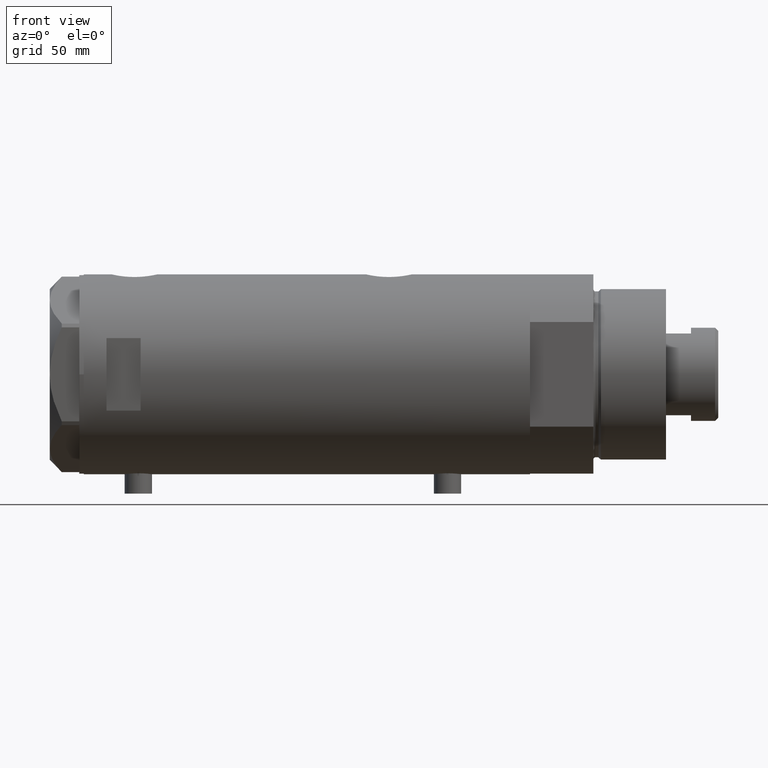
[diagram: clean part render]
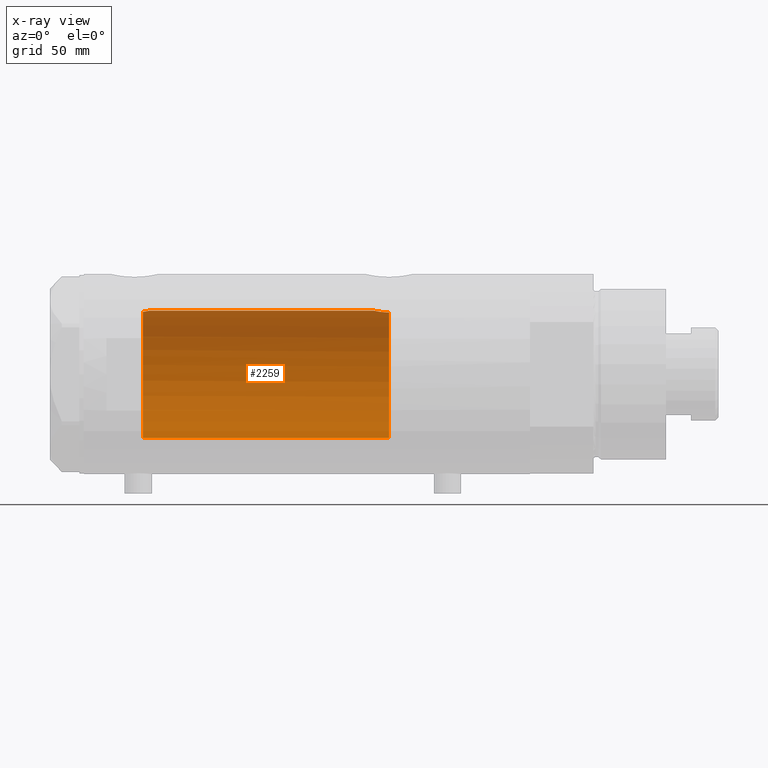
[diagram: x-ray — body ghosted, one internal face saturated and labeled with its STEP entity id]
A machine part, front view, then the same camera in x-ray: the body is ghosted and one INTERNAL B-rep face — a face not visible from any outside direction — is saturated and labeled: STEP entity #2259.
In plain terms, the highlighted cylindrical surface (partial cylindrical patch) has radius 28 mm, axis along (1, 0, -0).
Its self-contained STEP definition (entity closure, byte-faithful):
#50 = VERTEX_POINT ( 'NONE', #1344 ) ;
#72 = ORIENTED_EDGE ( 'NONE', *, *, #692, .T. ) ;
#109 = DIRECTION ( 'NONE',  ( -1.000000000000000000, 0.000000000000000000, 0.000000000000000000 ) ) ;
#119 = CARTESIAN_POINT ( 'NONE',  ( 27.50226589723266102, 5.257822516958276182, -32.13779315141981385 ) ) ;
#191 = CARTESIAN_POINT ( 'NONE',  ( 27.77951318121831292, 3.511620812961478766, -30.53115835401436584 ) ) ;
#199 = VERTEX_POINT ( 'NONE', #1572 ) ;
#469 = CARTESIAN_POINT ( 'NONE',  ( 27.62184089756353700, 4.590621453796800644, 71.17847296394721468 ) ) ;
#495 = CARTESIAN_POINT ( 'NONE',  ( 0.000000000000000000, 0.000000000000000000, 98.20000000000000284 ) ) ;
#531 = CARTESIAN_POINT ( 'NONE',  ( 27.80267334785860101, 3.323944738624912798, -30.41709962017577951 ) ) ;
#580 = CARTESIAN_POINT ( 'NONE',  ( 27.55311958554909424, 4.984468698502475981, -31.79897075987406296 ) ) ;
#597 = CARTESIAN_POINT ( 'NONE',  ( 27.23306259439848276, 6.508606919525674606, -35.10931986330979271 ) ) ;
#603 = VECTOR ( 'NONE', #3317, 1000.000000000000000 ) ;
#689 = CARTESIAN_POINT ( 'NONE',  ( 27.21525044627862755, 6.582564457995944807, -35.98128103916471332 ) ) ;
#692 = EDGE_CURVE ( 'NONE', #2000, #2551, #2788, .T. ) ;
#789 = CARTESIAN_POINT ( 'NONE',  ( 27.77752716845531822, 3.554080867558359280, 70.33702809021863800 ) ) ;
#811 = CARTESIAN_POINT ( 'NONE',  ( 27.92131942247208798, 2.112374604004425116, 69.66259974202708349 ) ) ;
#824 = CARTESIAN_POINT ( 'NONE',  ( 28.00000000000000000, 8.058211040487717449E-16, -29.52000000000000313 ) ) ;
#847 = ORIENTED_EDGE ( 'NONE', *, *, #1679, .F. ) ;
#873 = CARTESIAN_POINT ( 'NONE',  ( 27.84585502960274184, 2.940342086136633171, -30.20946914370765768 ) ) ;
#929 = CARTESIAN_POINT ( 'NONE',  ( 27.65669575048418238, 4.382057994727794004, -31.17233761202032838 ) ) ;
#966 = CARTESIAN_POINT ( 'NONE',  ( 27.22604017942136423, 6.537820648187911310, -35.32472952793341392 ) ) ;
#1009 = CARTESIAN_POINT ( 'NONE',  ( 28.00000000000000000, 3.429011037612589276E-15, 98.20000000000000284 ) ) ;
#1019 = CARTESIAN_POINT ( 'NONE',  ( 27.21605408577812568, 6.579240077698946365, -36.20000000000000995 ) ) ;
#1062 = ORIENTED_EDGE ( 'NONE', *, *, #1541, .T. ) ;
#1131 = B_SPLINE_CURVE_WITH_KNOTS ( 'NONE', 3,
 ( #1585, #4020, #1162, #4355, #469, #2617, #789, #2549, #3587, #811, #2218, #1556, #3326, #4381 ),
 .UNSPECIFIED., .F., .F.,
 ( 4, 2, 2, 2, 2, 2, 4 ),
 ( 0.03488855882532450325, 0.03568791961119571754, 0.03648728039706693183, 0.03808600196880933264, 0.03888536275468051917, 0.03968472354055171264, 0.04128344511229409958 ),
 .UNSPECIFIED. ) ;
#1162 = CARTESIAN_POINT ( 'NONE',  ( 27.52730847012277948, 5.126288527110444804, 71.76623399461912811 ) ) ;
#1228 = CARTESIAN_POINT ( 'NONE',  ( 28.00000000000000000, 8.058211040487717449E-16, -29.52000000000000313 ) ) ;
#1244 = CARTESIAN_POINT ( 'NONE',  ( 27.70785054350542964, 4.050475470458777316, -30.89631279652927276 ) ) ;
#1295 = DIRECTION ( 'NONE',  ( 1.000000000000000000, 0.000000000000000000, 0.000000000000000000 ) ) ;
#1317 = LINE ( 'NONE', #1009, #1488 ) ;
#1344 = CARTESIAN_POINT ( 'NONE',  ( 27.46622653369042411, 5.441176343402230664, 72.20000000000001705 ) ) ;
#1482 = AXIS2_PLACEMENT_3D ( 'NONE', #4277, #1878, #3294 ) ;
#1488 = VECTOR ( 'NONE', #3083, 1000.000000000000000 ) ;
#1541 = EDGE_CURVE ( 'NONE', #199, #2000, #2269, .T. ) ;
#1549 = CARTESIAN_POINT ( 'NONE',  ( 27.94984428957576128, 1.729919005741101357, -29.73624844305086512 ) ) ;
#1556 = CARTESIAN_POINT ( 'NONE',  ( 27.98435453724556510, 1.072101232728050579, 69.38566097371688102 ) ) ;
#1562 = VERTEX_POINT ( 'NONE', #824 ) ;
#1572 = CARTESIAN_POINT ( 'NONE',  ( -28.00000000000000000, 0.000000000000000000, 72.20000000000001705 ) ) ;
#1585 = CARTESIAN_POINT ( 'NONE',  ( 27.46622653369042411, 5.441176343402230664, 72.20000000000001705 ) ) ;
#1601 = CARTESIAN_POINT ( 'NONE',  ( -28.00000000000000000, 0.000000000000000000, 98.20000000000000284 ) ) ;
#1637 = CIRCLE ( 'NONE', #3969, 28.00000000000000000 ) ;
#1648 = EDGE_CURVE ( 'NONE', #1562, #2551, #1691, .T. ) ;
#1679 = EDGE_CURVE ( 'NONE', #2447, #1562, #1317, .T. ) ;
#1683 = CARTESIAN_POINT ( 'NONE',  ( -28.00000000000000000, 0.000000000000000000, -36.20000000000000995 ) ) ;
#1691 = B_SPLINE_CURVE_WITH_KNOTS ( 'NONE', 3,
 ( #1228, #2564, #2661, #1549, #2607, #4013, #873, #531, #191, #1244, #929, #3720, #580, #119, #2337, #2403, #3381, #2722, #4131, #597, #966, #3111, #689, #3134 ),
 .UNSPECIFIED., .F., .F.,
 ( 4, 2, 2, 2, 2, 2, 2, 2, 2, 2, 2, 4 ),
 ( 0.02064447638625019690, 0.02194711032043805340, 0.02324974425462590644, 0.02390106122171983469, 0.02455237818881376294, 0.02585501212300162291, 0.02650632909009555116, 0.02715764605718948288, 0.02846027999137732550, 0.02976291392556516466, 0.03041423089265908597, 0.03106554785975300728 ),
 .UNSPECIFIED. ) ;
#1820 = EDGE_CURVE ( 'NONE', #50, #199, #1637, .T. ) ;
#1878 = DIRECTION ( 'NONE',  ( 0.000000000000000000, 0.000000000000000000, -1.000000000000000000 ) ) ;
#1933 = FACE_OUTER_BOUND ( 'NONE', #2542, .T. ) ;
#1952 = ORIENTED_EDGE ( 'NONE', *, *, #1648, .F. ) ;
#2000 = VERTEX_POINT ( 'NONE', #1683 ) ;
#2218 = CARTESIAN_POINT ( 'NONE',  ( 27.93969014165221765, 1.855286977351521704, 69.58124112405666040 ) ) ;
#2259 = ADVANCED_FACE ( 'NONE', ( #1933 ), #3684, .F. ) ;
#2269 = LINE ( 'NONE', #1601, #603 ) ;
#2337 = CARTESIAN_POINT ( 'NONE',  ( 27.47751794615729537, 5.385218554237049204, -32.31285718566402210 ) ) ;
#2403 = CARTESIAN_POINT ( 'NONE',  ( 27.40633791352276560, 5.740289853568799394, -32.85469713442370221 ) ) ;
#2447 = VERTEX_POINT ( 'NONE', #3787 ) ;
#2542 = EDGE_LOOP ( 'NONE', ( #847, #2898, #2753, #1062, #72, #1952 ) ) ;
#2549 = CARTESIAN_POINT ( 'NONE',  ( 27.85549123290575579, 2.850830541327404877, 69.96370468682907529 ) ) ;
#2551 = VERTEX_POINT ( 'NONE', #1019 ) ;
#2564 = CARTESIAN_POINT ( 'NONE',  ( 28.00000000000000355, 0.4344375524774767294, -29.51999999999999957 ) ) ;
#2607 = CARTESIAN_POINT ( 'NONE',  ( 27.92057377942991891, 2.145335874642057217, -29.86449057456583489 ) ) ;
#2617 = CARTESIAN_POINT ( 'NONE',  ( 27.71586615897684780, 3.998795151939225523, 70.64767395625744939 ) ) ;
#2661 = CARTESIAN_POINT ( 'NONE',  ( 27.98989376185446432, 0.8673308354119273478, -29.56259295538816545 ) ) ;
#2676 = EDGE_CURVE ( 'NONE', #50, #2447, #1131, .T. ) ;
#2722 = CARTESIAN_POINT ( 'NONE',  ( 27.28989504668421517, 6.268149480003700091, -34.05093353430704184 ) ) ;
#2753 = ORIENTED_EDGE ( 'NONE', *, *, #1820, .T. ) ;
#2788 = CIRCLE ( 'NONE', #1482, 28.00000000000000000 ) ;
#2898 = ORIENTED_EDGE ( 'NONE', *, *, #2676, .F. ) ;
#2951 = AXIS2_PLACEMENT_3D ( 'NONE', #495, #3306, #109 ) ;
#3083 = DIRECTION ( 'NONE',  ( -0.000000000000000000, -0.000000000000000000, -1.000000000000000000 ) ) ;
#3111 = CARTESIAN_POINT ( 'NONE',  ( 27.21712162367727927, 6.574850051620749092, -35.76016190408788731 ) ) ;
#3134 = CARTESIAN_POINT ( 'NONE',  ( 27.21605408577812568, 6.579240077698946365, -36.20000000000000995 ) ) ;
#3294 = DIRECTION ( 'NONE',  ( -1.000000000000000000, 0.000000000000000000, 0.000000000000000000 ) ) ;
#3306 = DIRECTION ( 'NONE',  ( -0.000000000000000000, -0.000000000000000000, -1.000000000000000000 ) ) ;
#3317 = DIRECTION ( 'NONE',  ( -0.000000000000000000, -0.000000000000000000, -1.000000000000000000 ) ) ;
#3326 = CARTESIAN_POINT ( 'NONE',  ( 28.00000000000000355, 0.5407212781083803321, 69.32000000000003581 ) ) ;
#3381 = CARTESIAN_POINT ( 'NONE',  ( 27.36295003163000672, 5.941130795499232065, -33.23794896005177435 ) ) ;
#3587 = CARTESIAN_POINT ( 'NONE',  ( 27.87926027245440608, 2.609415915507860895, 69.85365920364245085 ) ) ;
#3684 = CYLINDRICAL_SURFACE ( 'NONE', #2951, 28.00000000000000000 ) ;
#3720 = CARTESIAN_POINT ( 'NONE',  ( 27.57921322802619457, 4.838471943606465153, -31.63541026849052429 ) ) ;
#3787 = CARTESIAN_POINT ( 'NONE',  ( 28.00000000000000000, 0.000000000000000000, 69.32000000000000739 ) ) ;
#3969 = AXIS2_PLACEMENT_3D ( 'NONE', #4439, #4158, #1295 ) ;
#4013 = CARTESIAN_POINT ( 'NONE',  ( 27.86588799758910895, 2.744542339393448493, -30.11578757899564351 ) ) ;
#4020 = CARTESIAN_POINT ( 'NONE',  ( 27.49602064413222635, 5.290780227724656726, 71.97882924682045314 ) ) ;
#4131 = CARTESIAN_POINT ( 'NONE',  ( 27.26132124301009441, 6.389601967157239493, -34.46983701249831711 ) ) ;
#4158 = DIRECTION ( 'NONE',  ( 0.000000000000000000, 0.000000000000000000, 1.000000000000000000 ) ) ;
#4277 = CARTESIAN_POINT ( 'NONE',  ( 0.000000000000000000, 0.000000000000000000, -36.20000000000000995 ) ) ;
#4355 = CARTESIAN_POINT ( 'NONE',  ( 27.59012538417911031, 4.776664836238046163, 71.36675298569846859 ) ) ;
#4381 = CARTESIAN_POINT ( 'NONE',  ( 28.00000000000000000, 0.000000000000000000, 69.32000000000000739 ) ) ;
#4439 = CARTESIAN_POINT ( 'NONE',  ( 0.000000000000000000, 0.000000000000000000, 72.20000000000001705 ) ) ;